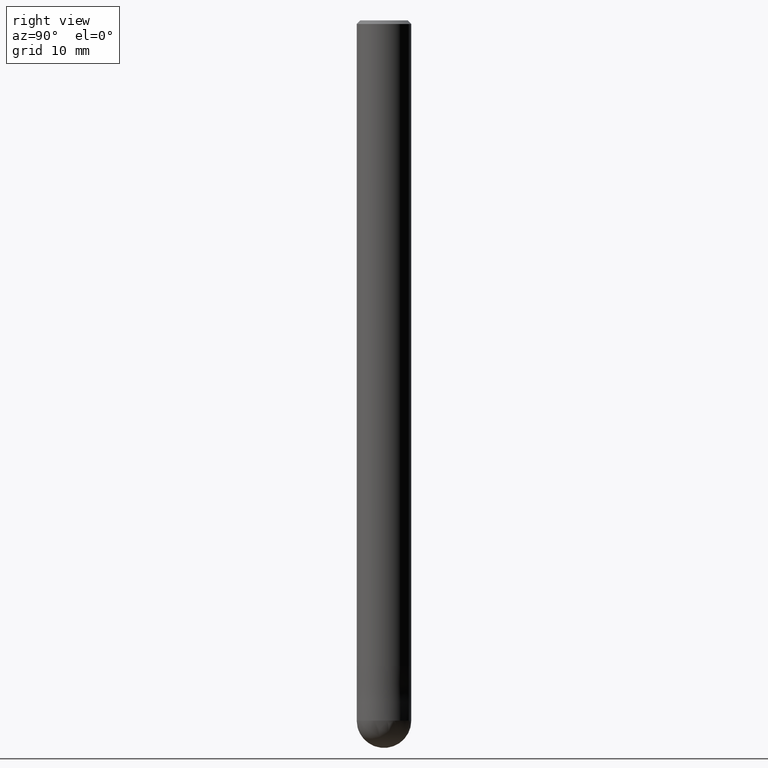
[diagram: clean part render]
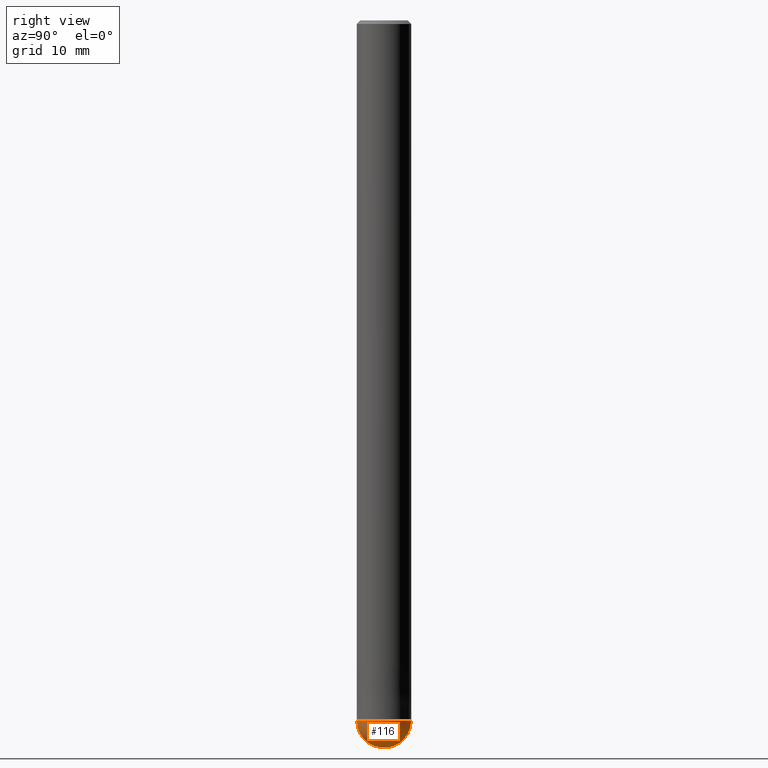
[diagram: same view with one face highlighted and labeled with its STEP entity id]
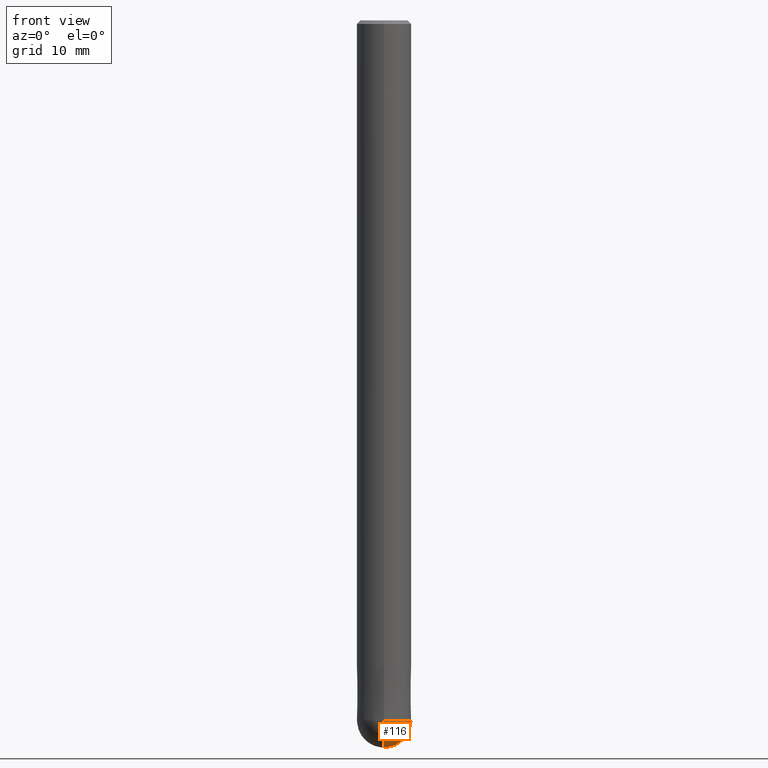
[diagram: same view with one face highlighted and labeled with its STEP entity id]
A machine part, right view. The second image highlights one B-rep face of the part: STEP entity #116.
A second angle (front view) of the same face is appended — the face is thin or edge-on in the first view.
In plain terms, the highlighted spherical surface has radius 3 mm.
Its self-contained STEP definition (entity closure, byte-faithful):
#84=VERTEX_POINT('',#179);
#96=EDGE_CURVE('',#84,#124,#192,.T.);
#104=EDGE_CURVE('',#124,#84,#202,.T.);
#116=ADVANCED_FACE('',(#217),#218,.T.);
#124=VERTEX_POINT('',#227);
#179=CARTESIAN_POINT('',(0.0,3.0,-77.0));
#192=CIRCLE('',#294,3.0);
#202=CIRCLE('',#307,3.00000000000001);
#217=FACE_OUTER_BOUND('',#327,.T.);
#218=SPHERICAL_SURFACE('',#328,3.00000000000001);
#227=CARTESIAN_POINT('',(3.67381906146713E-016,-3.0,-77.0));
#294=AXIS2_PLACEMENT_3D('',#405,#406,#407);
#307=AXIS2_PLACEMENT_3D('',#423,#424,#425);
#327=EDGE_LOOP('',(#448,#449));
#328=AXIS2_PLACEMENT_3D('',#450,#451,#452);
#405=CARTESIAN_POINT('',(0.0,0.0,-77.0));
#406=DIRECTION('',(0.0,0.0,-1.0));
#407=DIRECTION('',(0.0,1.0,0.0));
#423=CARTESIAN_POINT('',(0.0,0.0,-77.0));
#424=DIRECTION('',(1.0,0.0,1.22460635382238E-016));
#425=DIRECTION('',(-1.22460635382238E-016,0.0,1.0));
#448=ORIENTED_EDGE('',*,*,#104,.T.);
#449=ORIENTED_EDGE('',*,*,#96,.T.);
#450=CARTESIAN_POINT('',(0.0,0.0,-77.0));
#451=DIRECTION('',(0.0,1.0,0.0));
#452=DIRECTION('',(0.0,0.0,-1.0));